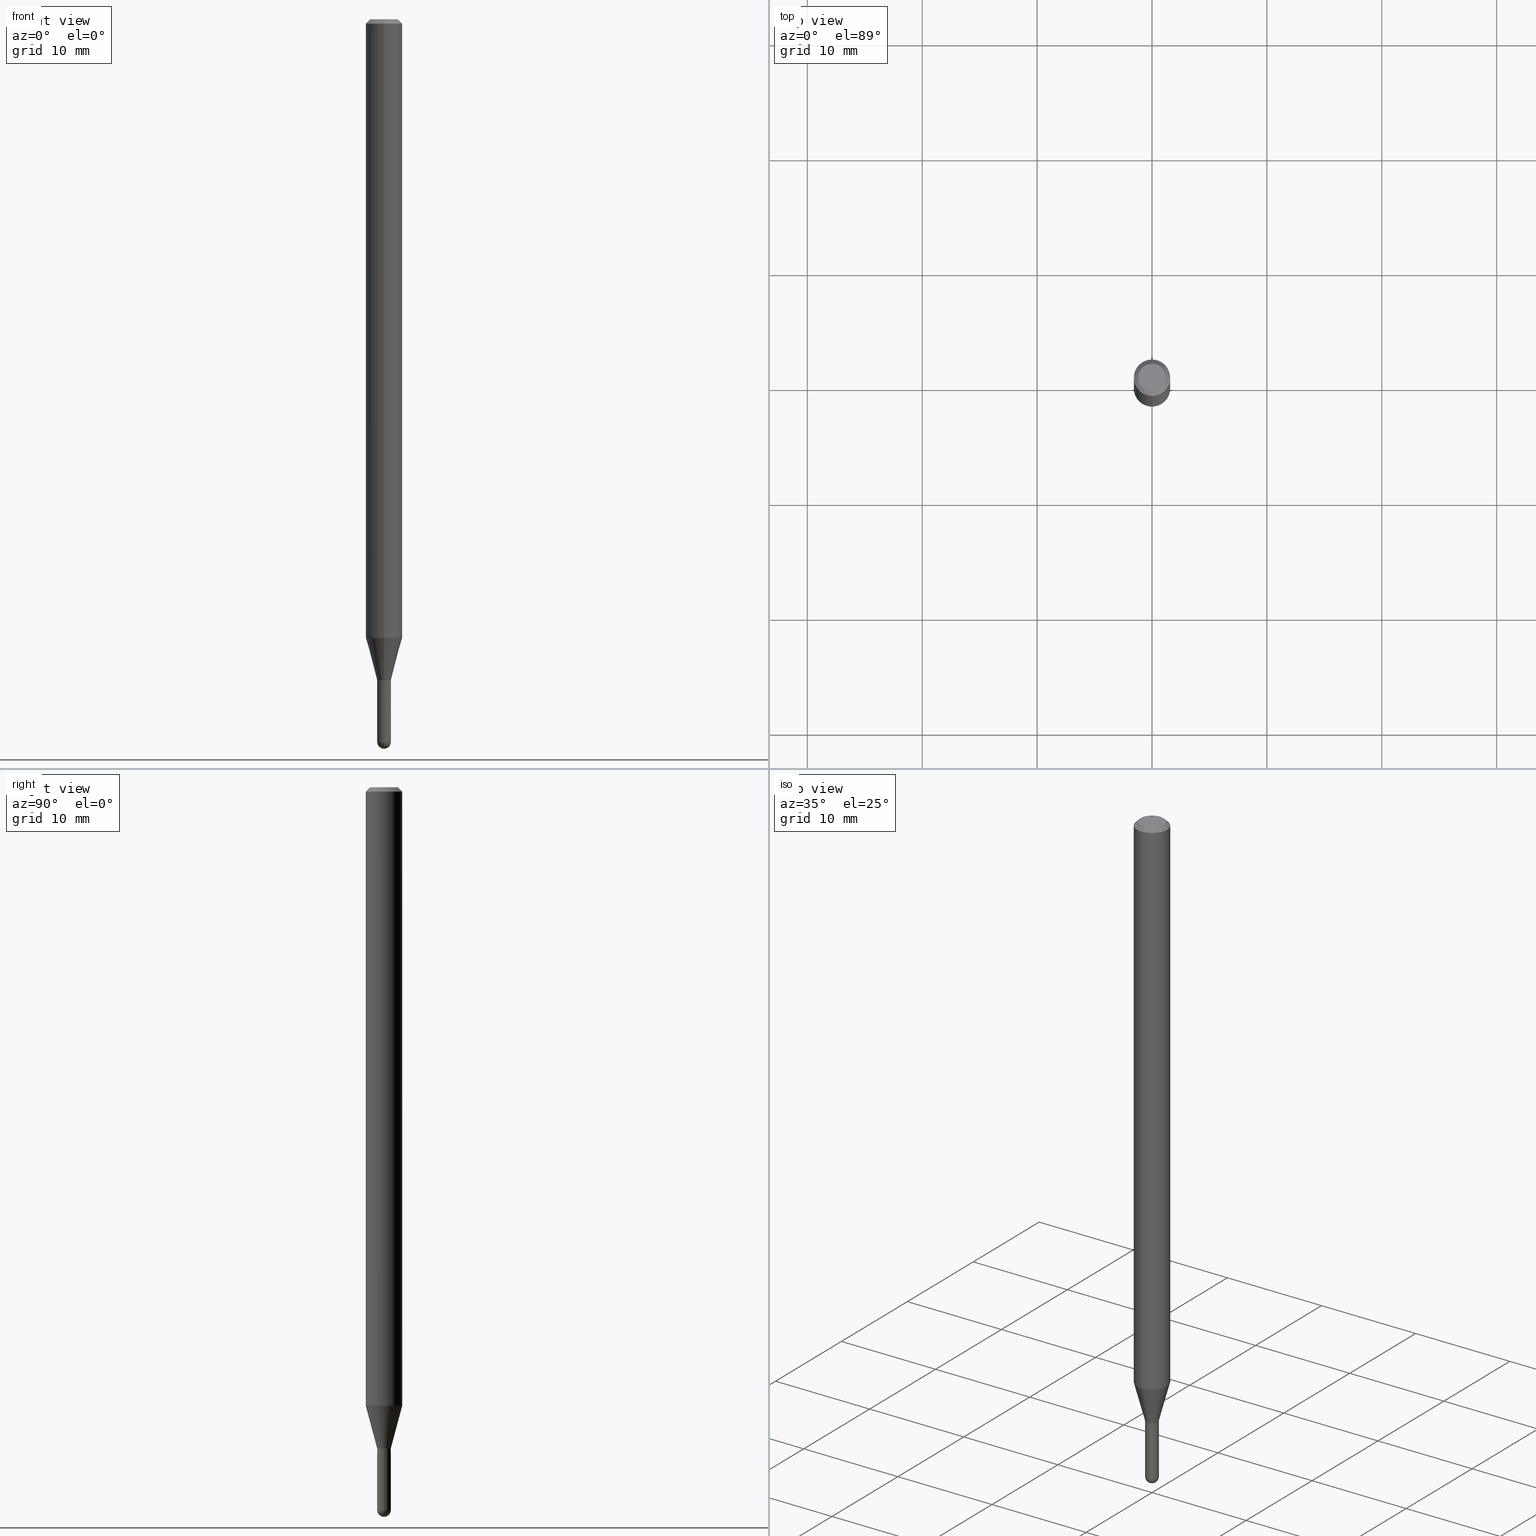
[diagram: canonical four-view strip — front | top / right | iso, engineering-drawing reading convention]
A machine part, canonical four-view strip (front | top / right | iso — engineering-drawing reading convention). The complete STEP part file that produces these views, byte-faithful:
ISO-10303-21;
HEADER;
FILE_DESCRIPTION (( 'STEP AP203' ),
    '1' );
FILE_NAME ('01508.STEP',
    '2024-03-07T19:35:51',
    ( '' ),
    ( '' ),
    'SwSTEP 2.0',
    'SolidWorks 2023',
    '' );
FILE_SCHEMA (( 'CONFIG_CONTROL_DESIGN' ));
ENDSEC;

DATA;
#1 = ORIENTED_EDGE ( 'NONE', *, *, #442, .T. ) ;
#2 = DIRECTION ( 'NONE',  ( -1.000000000000000000, 6.982962677686265922E-15, -4.883557194083112901E-29 ) ) ;
#3 = AXIS2_PLACEMENT_3D ( 'NONE', #346, #78, #281 ) ;
#4 = EDGE_CURVE ( 'NONE', #31, #505, #473, .T. ) ;
#5 = CARTESIAN_POINT ( 'NONE',  ( -1.669775429035628264E-16, -0.02350000000000862857, -2.476500000000000590 ) ) ;
#6 = ADVANCED_FACE ( 'NONE', ( #197 ), #468, .T. ) ;
#7 = DIRECTION ( 'NONE',  ( -2.445458010321293800E-29, 3.491496799134631242E-15, 1.000000000000000000 ) ) ;
#8 = DIRECTION ( 'NONE',  ( -2.445458010321293800E-29, 3.491496799134631242E-15, 1.000000000000000000 ) ) ;
#9 = AXIS2_PLACEMENT_3D ( 'NONE', #275, #471, #347 ) ;
#10 = LOCAL_TIME ( 14, 35, 51.00000000000000000, #503 ) ;
#11 = LENGTH_MEASURE_WITH_UNIT ( LENGTH_MEASURE( 0.02539999999999999897 ), #300 );
#12 = EDGE_CURVE ( 'NONE', #368, #508, #239, .T. ) ;
#13 = CARTESIAN_POINT ( 'NONE',  ( 4.364351673553919652E-16, 0.06249999999999995143, -0.01500000000000022669 ) ) ;
#14 = VERTEX_POINT ( 'NONE', #426 ) ;
#15 = CARTESIAN_POINT ( 'NONE',  ( -1.640996229256267342E-16, -0.02349999999999992373, 8.205017477966357131E-17 ) ) ;
#16 = VERTEX_POINT ( 'NONE', #82 ) ;
#17 = AXIS2_PLACEMENT_3D ( 'NONE', #272, #386, #107 ) ;
#18 = APPROVAL_PERSON_ORGANIZATION ( #110, #487, #377 ) ;
#19 = APPLICATION_CONTEXT ( 'configuration controlled 3d designs of mechanical parts and assemblies' ) ;
#20 = CARTESIAN_POINT ( 'NONE',  ( 5.183026025228223920E-29, -7.400052955535410422E-15, -2.119450018504819067 ) ) ;
#21 = ORIENTED_EDGE ( 'NONE', *, *, #149, .T. ) ;
#22 = SHAPE_DEFINITION_REPRESENTATION ( #460, #168 ) ;
#23 = APPLICATION_PROTOCOL_DEFINITION ( 'international standard', 'config_control_design', 1994, #19 ) ;
#24 = ORIENTED_EDGE ( 'NONE', *, *, #378, .T. ) ;
#25 = PERSON_AND_ORGANIZATION ( #418, #126 ) ;
#26 = COORDINATED_UNIVERSAL_TIME_OFFSET ( 5, 0, .BEHIND. ) ;
#27 = ORIENTED_EDGE ( 'NONE', *, *, #286, .T. ) ;
#28 = AXIS2_PLACEMENT_3D ( 'NONE', #119, #7, #479 ) ;
#29 = VECTOR ( 'NONE', #409, 39.37007874015748143 ) ;
#30 = DIRECTION ( 'NONE',  ( -2.445458010321293800E-29, 3.491496799134631242E-15, 1.000000000000000000 ) ) ;
#31 = VERTEX_POINT ( 'NONE', #422 ) ;
#32 = PRODUCT ( '01508', '01508', '', ( #181 ) ) ;
#33 = PERSON_AND_ORGANIZATION_ROLE ( 'design_supplier' ) ;
#34 = PLANE ( 'NONE',  #217 ) ;
#35 = PERSON_AND_ORGANIZATION_ROLE ( 'classification_officer' ) ;
#36 = DIRECTION ( 'NONE',  ( -6.982962677686265922E-15, -1.000000000000000000, 3.483106191921935554E-15 ) ) ;
#37 = EDGE_LOOP ( 'NONE', ( #307, #143, #131, #66 ) ) ;
#38 = ADVANCED_FACE ( 'NONE', ( #114 ), #271, .T. ) ;
#39 = AXIS2_PLACEMENT_3D ( 'NONE', #511, #269, #395 ) ;
#40 = AXIS2_PLACEMENT_3D ( 'NONE', #451, #96, #257 ) ;
#41 = FACE_OUTER_BOUND ( 'NONE', #419, .T. ) ;
#42 = ORIENTED_EDGE ( 'NONE', *, *, #266, .F. ) ;
#43 = CARTESIAN_POINT ( 'NONE',  ( 5.538962393377731080E-29, -7.908240250039940864E-15, -2.265000000000000124 ) ) ;
#44 = CARTESIAN_POINT ( 'NONE',  ( 1.669775429036758554E-16, 0.02349999999999166644, -2.264499999999999957 ) ) ;
#45 = EDGE_LOOP ( 'NONE', ( #499, #406, #370, #296 ) ) ;
#46 = FACE_OUTER_BOUND ( 'NONE', #450, .T. ) ;
#47 = DIRECTION ( 'NONE',  ( -6.982962677686265922E-15, -1.000000000000000000, 3.491496799134631242E-15 ) ) ;
#48 = VECTOR ( 'NONE', #457, 39.37007874015748143 ) ;
#49 = DIRECTION ( 'NONE',  ( -7.105427357601001070E-15, -1.000000000000000000, 0.000000000000000000 ) ) ;
#50 = DIRECTION ( 'NONE',  ( 1.000000000000000000, -6.982962677686269866E-15, 0.000000000000000000 ) ) ;
#51 = EDGE_CURVE ( 'NONE', #61, #368, #134, .T. ) ;
#52 = DIRECTION ( 'NONE',  ( -2.445468806185136597E-29, 3.491481338843145583E-15, 1.000000000000000000 ) ) ;
#53 = CIRCLE ( 'NONE', #364, 0.02350000000000000352 ) ;
#54 = CARTESIAN_POINT ( 'NONE',  ( 2.166574366390144991E-46, -3.093321346517198694E-32, -8.859585227985542317E-18 ) ) ;
#55 = ORIENTED_EDGE ( 'NONE', *, *, #104, .T. ) ;
#56 = ADVANCED_FACE ( 'NONE', ( #116 ), #190, .T. ) ;
#57 = DIRECTION ( 'NONE',  ( -2.445458010321293800E-29, 3.491496799134631242E-15, 1.000000000000000000 ) ) ;
#58 = ORIENTED_EDGE ( 'NONE', *, *, #423, .T. ) ;
#59 = ADVANCED_FACE ( 'NONE', ( #384 ), #278, .T. ) ;
#60 = PERSON_AND_ORGANIZATION ( #418, #126 ) ;
#61 = VERTEX_POINT ( 'NONE', #396 ) ;
#62 = AXIS2_PLACEMENT_3D ( 'NONE', #441, #8, #366 ) ;
#63 = PRODUCT_DEFINITION_FORMATION_WITH_SPECIFIED_SOURCE ( 'ANY', '', #32, .NOT_KNOWN. ) ;
#64 =( NAMED_UNIT ( * ) SI_UNIT ( $, .STERADIAN. ) SOLID_ANGLE_UNIT ( ) );
#65 = ORIENTED_EDGE ( 'NONE', *, *, #4, .F. ) ;
#66 = ORIENTED_EDGE ( 'NONE', *, *, #138, .T. ) ;
#67 = APPROVAL_DATE_TIME ( #374, #407 ) ;
#68 = DIRECTION ( 'NONE',  ( -2.445458010321293800E-29, 3.491496799134631242E-15, 1.000000000000000000 ) ) ;
#69 = CARTESIAN_POINT ( 'NONE',  ( 5.538962393377731080E-29, -7.908240250039940864E-15, -2.265000000000000124 ) ) ;
#70 = AXIS2_PLACEMENT_3D ( 'NONE', #383, #231, #199 ) ;
#71 = PERSON_AND_ORGANIZATION ( #418, #126 ) ;
#72 = CARTESIAN_POINT ( 'NONE',  ( 2.166574366390144991E-46, -3.093321346517198694E-32, -8.859585227985542317E-18 ) ) ;
#73 = VERTEX_POINT ( 'NONE', #44 ) ;
#74 = DIRECTION ( 'NONE',  ( 1.839019923739650408E-15, 0.2588190451025319527, 0.9659258262890650926 ) ) ;
#75 = ORIENTED_EDGE ( 'NONE', *, *, #317, .T. ) ;
#76 = EDGE_CURVE ( 'NONE', #14, #467, #200, .T. ) ;
#77 = LINE ( 'NONE', #309, #237 ) ;
#78 = DIRECTION ( 'NONE',  ( -2.445468806185136597E-29, 3.491481338843145583E-15, 1.000000000000000000 ) ) ;
#79 = AXIS2_PLACEMENT_3D ( 'NONE', #326, #288, #47 ) ;
#80 = CIRCLE ( 'NONE', #506, 0.02350000000000019781 ) ;
#81 = DIRECTION ( 'NONE',  ( -6.982962677686266711E-15, -1.000000000000000000, 3.491496799134631242E-15 ) ) ;
#82 = CARTESIAN_POINT ( 'NONE',  ( -3.773273898774340269E-16, -0.04749999999999999362, 1.569865127309094228E-16 ) ) ;
#83 = ORIENTED_EDGE ( 'NONE', *, *, #379, .F. ) ;
#84 = ADVANCED_FACE ( 'NONE', ( #187 ), #481, .T. ) ;
#85 = CARTESIAN_POINT ( 'NONE',  ( 5.183026025228223920E-29, -7.400052955535410422E-15, -2.119450018504819067 ) ) ;
#86 = CC_DESIGN_DATE_AND_TIME_ASSIGNMENT ( #413, #303, ( #465 ) ) ;
#87 = CARTESIAN_POINT ( 'NONE',  ( 5.538986846009334661E-29, -7.908205232479725133E-15, -2.265000000000000124 ) ) ;
#88 = FACE_OUTER_BOUND ( 'NONE', #495, .T. ) ;
#89 = AXIS2_PLACEMENT_3D ( 'NONE', #439, #428, #315 ) ;
#90 = LINE ( 'NONE', #363, #434 ) ;
#91 = LINE ( 'NONE', #244, #475 ) ;
#92 = VECTOR ( 'NONE', #277, 39.37007874015748143 ) ;
#93 = ORIENTED_EDGE ( 'NONE', *, *, #132, .F. ) ;
#94 = CC_DESIGN_APPROVAL ( #127, ( #240 ) ) ;
#95 = UNCERTAINTY_MEASURE_WITH_UNIT (LENGTH_MEASURE( 1.000000000000000082E-05 ), #253, 'distance_accuracy_value', 'NONE');
#96 = DIRECTION ( 'NONE',  ( -2.445458010321293800E-29, 3.491496799134631242E-15, 1.000000000000000000 ) ) ;
#97 = VERTEX_POINT ( 'NONE', #120 ) ;
#98 = ADVANCED_FACE ( 'NONE', ( #355 ), #512, .F. ) ;
#99 = ORIENTED_EDGE ( 'NONE', *, *, #76, .T. ) ;
#100 = ORIENTED_EDGE ( 'NONE', *, *, #121, .T. ) ;
#101 = CONICAL_SURFACE ( 'NONE', #246, 0.06250000000000000000, 0.7853981633974483900 ) ;
#102 = APPROVAL_PERSON_ORGANIZATION ( #60, #127, #295 ) ;
#103 = EDGE_LOOP ( 'NONE', ( #177, #135, #496, #83 ) ) ;
#104 = EDGE_CURVE ( 'NONE', #298, #492, #414, .T. ) ;
#105 = CARTESIAN_POINT ( 'NONE',  ( 5.538962393377729959E-29, -7.908240250039939287E-15, -2.265000000000000124 ) ) ;
#106 = DIRECTION ( 'NONE',  ( -4.937700262161976356E-15, -0.7071067811861768693, 0.7071067811869181652 ) ) ;
#107 = DIRECTION ( 'NONE',  ( 1.000000000000000000, -6.982962677686227268E-15, 0.000000000000000000 ) ) ;
#108 = ORIENTED_EDGE ( 'NONE', *, *, #331, .T. ) ;
#109 = AXIS2_PLACEMENT_3D ( 'NONE', #148, #189, #349 ) ;
#110 = PERSON_AND_ORGANIZATION ( #418, #126 ) ;
#111 = CARTESIAN_POINT ( 'NONE',  ( 1.669775429036802928E-16, 0.02349999999999228747, -2.265000000000000124 ) ) ;
#112 = ORIENTED_EDGE ( 'NONE', *, *, #132, .T. ) ;
#113 = DIRECTION ( 'NONE',  ( -2.445458010321293800E-29, 3.491496799134631242E-15, 1.000000000000000000 ) ) ;
#114 = FACE_OUTER_BOUND ( 'NONE', #103, .T. ) ;
#115 = FACE_OUTER_BOUND ( 'NONE', #260, .T. ) ;
#116 = FACE_OUTER_BOUND ( 'NONE', #301, .T. ) ;
#117 = AXIS2_PLACEMENT_3D ( 'NONE', #85, #242, #400 ) ;
#118 = AXIS2_PLACEMENT_3D ( 'NONE', #322, #478, #491 ) ;
#119 = CARTESIAN_POINT ( 'NONE',  ( 0.000000000000000000, 0.000000000000000000, 0.000000000000000000 ) ) ;
#120 = CARTESIAN_POINT ( 'NONE',  ( 3.055333763768974376E-16, 0.02349999999999228401, -2.265000000000000124 ) ) ;
#121 = EDGE_CURVE ( 'NONE', #218, #222, #424, .T. ) ;
#122 = DIRECTION ( 'NONE',  ( -6.982962677686265133E-15, -1.000000000000000000, 0.000000000000000000 ) ) ;
#123 = DIRECTION ( 'NONE',  ( -2.445458010321293800E-29, 3.491496799134631242E-15, 1.000000000000000000 ) ) ;
#124 = EDGE_CURVE ( 'NONE', #16, #174, #352, .T. ) ;
#125 = AXIS2_PLACEMENT_3D ( 'NONE', #153, #314, #470 ) ;
#126 = ORGANIZATION ( 'UNSPECIFIED', 'UNSPECIFIED', '' ) ;
#127 = APPROVAL ( #216, 'UNSPECIFIED' ) ;
#128 = FACE_OUTER_BOUND ( 'NONE', #397, .T. ) ;
#129 = CARTESIAN_POINT ( 'NONE',  ( 4.440892098501147796E-16, 0.06249999999999995837, -0.01500000000000022669 ) ) ;
#130 = EDGE_CURVE ( 'NONE', #330, #194, #501, .T. ) ;
#131 = ORIENTED_EDGE ( 'NONE', *, *, #485, .T. ) ;
#132 = EDGE_CURVE ( 'NONE', #222, #454, #489, .T. ) ;
#133 = PERSON_AND_ORGANIZATION ( #418, #126 ) ;
#134 = CIRCLE ( 'NONE', #294, 0.02299999999999999961 ) ;
#135 = ORIENTED_EDGE ( 'NONE', *, *, #292, .T. ) ;
#136 = CC_DESIGN_PERSON_AND_ORGANIZATION_ASSIGNMENT ( #71, #33, ( #63 ) ) ;
#137 = AXIS2_PLACEMENT_3D ( 'NONE', #444, #2, #165 ) ;
#138 = EDGE_CURVE ( 'NONE', #508, #73, #262, .T. ) ;
#139 = ORIENTED_EDGE ( 'NONE', *, *, #410, .T. ) ;
#140 = PERSON_AND_ORGANIZATION_ROLE ( 'creator' ) ;
#141 =( NAMED_UNIT ( * ) PLANE_ANGLE_UNIT ( ) SI_UNIT ( $, .RADIAN. ) );
#142 = ORIENTED_EDGE ( 'NONE', *, *, #379, .T. ) ;
#143 = ORIENTED_EDGE ( 'NONE', *, *, #286, .F. ) ;
#144 = AXIS2_PLACEMENT_3D ( 'NONE', #354, #469, #36 ) ;
#145 = COORDINATED_UNIVERSAL_TIME_OFFSET ( 5, 0, .BEHIND. ) ;
#146 = DIRECTION ( 'NONE',  ( 1.000000000000000000, -6.982962677686269866E-15, 0.000000000000000000 ) ) ;
#147 = PERSON_AND_ORGANIZATION ( #418, #126 ) ;
#148 = CARTESIAN_POINT ( 'NONE',  ( 5.537739664372570003E-29, -7.906494501640371165E-15, -2.264499999999999957 ) ) ;
#149 = EDGE_CURVE ( 'NONE', #73, #508, #274, .T. ) ;
#150 = DIRECTION ( 'NONE',  ( -2.445458010321293800E-29, 3.491496799134631242E-15, 1.000000000000000000 ) ) ;
#151 = DATE_AND_TIME ( #268, #10 ) ;
#152 = CARTESIAN_POINT ( 'NONE',  ( -4.364351673553912750E-16, -0.06250000000000005551, -0.01499999999999979128 ) ) ;
#153 = CARTESIAN_POINT ( 'NONE',  ( 6.054193857737919554E-29, -8.649531455623046771E-15, -2.476500000000000146 ) ) ;
#154 = AXIS2_PLACEMENT_3D ( 'NONE', #72, #113, #81 ) ;
#155 = CONICAL_SURFACE ( 'NONE', #118, 0.02350000000000019781, 0.2617993877991575680 ) ;
#156 = DIRECTION ( 'NONE',  ( 6.982962677686265922E-15, 1.000000000000000000, -3.483106191921935554E-15 ) ) ;
#157 = ORIENTED_EDGE ( 'NONE', *, *, #124, .F. ) ;
#158 = AXIS2_PLACEMENT_3D ( 'NONE', #350, #305, #432 ) ;
#159 = DIRECTION ( 'NONE',  ( 6.982962677686265922E-15, 1.000000000000000000, 0.000000000000000000 ) ) ;
#160 = CARTESIAN_POINT ( 'NONE',  ( 5.538986846009334661E-29, -7.908205232479725133E-15, -2.265000000000000124 ) ) ;
#161 = DIRECTION ( 'NONE',  ( -6.982962677686266711E-15, -1.000000000000000000, 3.491496799134631242E-15 ) ) ;
#162 = CARTESIAN_POINT ( 'NONE',  ( 3.668187015481942626E-31, -5.237245198701949674E-17, -0.01500000000000000812 ) ) ;
#163 = EDGE_CURVE ( 'NONE', #194, #174, #313, .T. ) ;
#164 = ORIENTED_EDGE ( 'NONE', *, *, #51, .T. ) ;
#165 = DIRECTION ( 'NONE',  ( 6.982962677686265922E-15, 1.000000000000000000, 0.000000000000000000 ) ) ;
#166 = CC_DESIGN_DATE_AND_TIME_ASSIGNMENT ( #151, #463, ( #240 ) ) ;
#167 = CARTESIAN_POINT ( 'NONE',  ( -1.640996229255732643E-16, -0.02350000000000810815, -2.265000000000000124 ) ) ;
#168 = ADVANCED_BREP_SHAPE_REPRESENTATION ( '01508', ( #336, #169, #382 ), #351 ) ;
#169 = MANIFOLD_SOLID_BREP ( 'Body-Move/Copy2[2]', #399 ) ;
#170 = DIRECTION ( 'NONE',  ( -2.445468806185136597E-29, 3.491481338843145583E-15, 1.000000000000000000 ) ) ;
#171 = CARTESIAN_POINT ( 'NONE',  ( 6.054193857737919554E-29, -8.649531455623046771E-15, -2.476500000000000146 ) ) ;
#172 = CIRCLE ( 'NONE', #381, 0.02350000000000019781 ) ;
#173 = PERSON_AND_ORGANIZATION_ROLE ( 'design_owner' ) ;
#174 = VERTEX_POINT ( 'NONE', #152 ) ;
#175 = EDGE_CURVE ( 'NONE', #454, #505, #77, .T. ) ;
#176 = CIRCLE ( 'NONE', #144, 0.06250000000000000000 ) ;
#177 = ORIENTED_EDGE ( 'NONE', *, *, #226, .F. ) ;
#178 = AXIS2_PLACEMENT_3D ( 'NONE', #20, #449, #329 ) ;
#179 = CYLINDRICAL_SURFACE ( 'NONE', #40, 0.06250000000000000000 ) ;
#180 = ORIENTED_EDGE ( 'NONE', *, *, #51, .F. ) ;
#181 = MECHANICAL_CONTEXT ( 'NONE', #19, 'mechanical' ) ;
#182 = ORIENTED_EDGE ( 'NONE', *, *, #423, .F. ) ;
#183 = EDGE_LOOP ( 'NONE', ( #215, #180 ) ) ;
#184 = CIRCLE ( 'NONE', #154, 0.04749999999999999362 ) ;
#185 = COORDINATED_UNIVERSAL_TIME_OFFSET ( 5, 0, .BEHIND. ) ;
#186 = DIRECTION ( 'NONE',  ( -6.982962677686265922E-15, -1.000000000000000000, 0.000000000000000000 ) ) ;
#187 = FACE_OUTER_BOUND ( 'NONE', #255, .T. ) ;
#188 = CC_DESIGN_PERSON_AND_ORGANIZATION_ASSIGNMENT ( #427, #35, ( #465 ) ) ;
#189 = DIRECTION ( 'NONE',  ( -2.445458010321293800E-29, 3.491496799134631242E-15, 1.000000000000000000 ) ) ;
#190 = SPHERICAL_SURFACE ( 'NONE', #125, 0.02349999999999995495 ) ;
#191 = EDGE_CURVE ( 'NONE', #492, #222, #327, .T. ) ;
#192 = PERSON_AND_ORGANIZATION ( #418, #126 ) ;
#193 = CARTESIAN_POINT ( 'NONE',  ( 3.668187015481942626E-31, -5.237245198701949674E-17, -0.01500000000000000812 ) ) ;
#194 = VERTEX_POINT ( 'NONE', #345 ) ;
#195 = VECTOR ( 'NONE', #150, 39.37007874015748143 ) ;
#196 = CARTESIAN_POINT ( 'NONE',  ( 6.112667195073056873E-29, -8.730142307096863163E-15, -2.500000000000000000 ) ) ;
#197 = FACE_OUTER_BOUND ( 'NONE', #456, .T. ) ;
#198 = ADVANCED_FACE ( 'NONE', ( #115 ), #34, .F. ) ;
#199 = DIRECTION ( 'NONE',  ( 1.000000000000000000, -6.982962677686227268E-15, 0.000000000000000000 ) ) ;
#200 = LINE ( 'NONE', #502, #195 ) ;
#201 = ORIENTED_EDGE ( 'NONE', *, *, #362, .T. ) ;
#202 = DIRECTION ( 'NONE',  ( 1.000000000000000000, -6.982962677686227268E-15, 0.000000000000000000 ) ) ;
#203 = VECTOR ( 'NONE', #233, 39.37007874015748143 ) ;
#204 = LOCAL_TIME ( 14, 35, 51.00000000000000000, #26 ) ;
#205 = DIRECTION ( 'NONE',  ( -1.000000000000000000, 7.105427357601001070E-15, -4.926315508542082329E-29 ) ) ;
#206 = CARTESIAN_POINT ( 'NONE',  ( 0.000000000000000000, 0.000000000000000000, 0.000000000000000000 ) ) ;
#207 = DIRECTION ( 'NONE',  ( -2.445458010321293800E-29, 3.491496799134631242E-15, 1.000000000000000000 ) ) ;
#208 = CIRCLE ( 'NONE', #497, 0.02349999999999995495 ) ;
#209 = PLANE ( 'NONE',  #79 ) ;
#210 = DIMENSIONAL_EXPONENTS ( 1.000000000000000000, 0.000000000000000000, 0.000000000000000000, 0.000000000000000000, 0.000000000000000000, 0.000000000000000000, 0.000000000000000000 ) ;
#211 = CARTESIAN_POINT ( 'NONE',  ( 0.000000000000000000, 0.000000000000000000, 0.000000000000000000 ) ) ;
#212 = EDGE_LOOP ( 'NONE', ( #446, #142, #267, #380 ) ) ;
#213 = CC_DESIGN_PERSON_AND_ORGANIZATION_ASSIGNMENT ( #147, #389, ( #63 ) ) ;
#214 = CARTESIAN_POINT ( 'NONE',  ( 3.840629472727447874E-16, 0.04749999999999999362, -1.747056831868805136E-16 ) ) ;
#215 = ORIENTED_EDGE ( 'NONE', *, *, #410, .F. ) ;
#216 = APPROVAL_STATUS ( 'not_yet_approved' ) ;
#217 = AXIS2_PLACEMENT_3D ( 'NONE', #425, #466, #392 ) ;
#218 = VERTEX_POINT ( 'NONE', #196 ) ;
#219 = CIRCLE ( 'NONE', #436, 0.04749999999999999362 ) ;
#220 = CALENDAR_DATE ( 2024, 7, 3 ) ;
#221 = CARTESIAN_POINT ( 'NONE',  ( 0.02350000000000000699, -8.441529006988016167E-15, -2.476500000000000590 ) ) ;
#222 = VERTEX_POINT ( 'NONE', #280 ) ;
#223 = CC_DESIGN_PERSON_AND_ORGANIZATION_ASSIGNMENT ( #133, #173, ( #32 ) ) ;
#224 = CARTESIAN_POINT ( 'NONE',  ( -0.02350000000000000699, -8.110451841158766012E-15, -2.476500000000000590 ) ) ;
#225 = ORIENTED_EDGE ( 'NONE', *, *, #266, .T. ) ;
#226 = EDGE_CURVE ( 'NONE', #97, #14, #390, .T. ) ;
#227 = CARTESIAN_POINT ( 'NONE',  ( 5.538962393377729959E-29, -7.908240250039939287E-15, -2.265000000000000124 ) ) ;
#228 = DIRECTION ( 'NONE',  ( -6.982962677686265133E-15, -1.000000000000000000, 0.000000000000000000 ) ) ;
#229 = CIRCLE ( 'NONE', #254, 0.02350000000000000699 ) ;
#230 = APPROVAL_DATE_TIME ( #493, #487 ) ;
#231 = DIRECTION ( 'NONE',  ( -2.445468806185136597E-29, 3.491481338843145583E-15, 1.000000000000000000 ) ) ;
#232 = ORIENTED_EDGE ( 'NONE', *, *, #331, .F. ) ;
#233 = DIRECTION ( 'NONE',  ( -4.851104656540964275E-15, -0.7071067811865500152, -0.7071067811865450192 ) ) ;
#234 = CARTESIAN_POINT ( 'NONE',  ( -1.606081415867287287E-16, -0.02300000000000790995, -2.265000000000000124 ) ) ;
#235 = DIRECTION ( 'NONE',  ( -2.445468806185136877E-29, 3.491481338843145188E-15, 1.000000000000000000 ) ) ;
#236 = ORIENTED_EDGE ( 'NONE', *, *, #191, .F. ) ;
#237 = VECTOR ( 'NONE', #235, 39.37007874015748143 ) ;
#238 = DIRECTION ( 'NONE',  ( 1.000000000000000000, -6.982962677686265922E-15, 4.883557194083112340E-29 ) ) ;
#239 = LINE ( 'NONE', #234, #344 ) ;
#240 = PRODUCT_DEFINITION ( 'UNKNOWN', '', #63, #408 ) ;
#241 = ORIENTED_EDGE ( 'NONE', *, *, #245, .F. ) ;
#242 = DIRECTION ( 'NONE',  ( -2.445458010321293800E-29, 3.491496799134631242E-15, 1.000000000000000000 ) ) ;
#243 = APPLICATION_CONTEXT ( 'configuration controlled 3d designs of mechanical parts and assemblies' ) ;
#244 = CARTESIAN_POINT ( 'NONE',  ( 1.669775429036229771E-16, 0.02349999999999992373, -8.205017477966357131E-17 ) ) ;
#245 = EDGE_CURVE ( 'NONE', #174, #467, #176, .T. ) ;
#246 = AXIS2_PLACEMENT_3D ( 'NONE', #193, #507, #156 ) ;
#247 = CC_DESIGN_APPROVAL ( #407, ( #465 ) ) ;
#248 = CARTESIAN_POINT ( 'NONE',  ( 0.000000000000000000, 0.000000000000000000, 0.000000000000000000 ) ) ;
#249 = FACE_OUTER_BOUND ( 'NONE', #37, .T. ) ;
#250 = CYLINDRICAL_SURFACE ( 'NONE', #447, 0.02349999999999992373 ) ;
#251 = ADVANCED_FACE ( 'NONE', ( #431 ), #101, .T. ) ;
#252 = CIRCLE ( 'NONE', #320, 0.02299999999999999961 ) ;
#253 =( CONVERSION_BASED_UNIT ( 'INCH', #11 ) LENGTH_UNIT ( ) NAMED_UNIT ( #210 ) );
#254 = AXIS2_PLACEMENT_3D ( 'NONE', #287, #170, #202 ) ;
#255 = EDGE_LOOP ( 'NONE', ( #157, #42, #343, #75 ) ) ;
#256 = CC_DESIGN_PERSON_AND_ORGANIZATION_ASSIGNMENT ( #25, #140, ( #240 ) ) ;
#257 = DIRECTION ( 'NONE',  ( -6.982962677686265922E-15, -1.000000000000000000, 3.491496799134631242E-15 ) ) ;
#258 = ORIENTED_EDGE ( 'NONE', *, *, #138, .F. ) ;
#259 = LINE ( 'NONE', #15, #29 ) ;
#260 = EDGE_LOOP ( 'NONE', ( #225, #430 ) ) ;
#261 = SECURITY_CLASSIFICATION_LEVEL ( 'unclassified' ) ;
#262 = CIRCLE ( 'NONE', #39, 0.02349999999999965311 ) ;
#263 = ORIENTED_EDGE ( 'NONE', *, *, #485, .F. ) ;
#264 = CC_DESIGN_APPROVAL ( #487, ( #63 ) ) ;
#265 = CARTESIAN_POINT ( 'NONE',  ( -1.640996229255700102E-16, -0.02350000000000763978, -2.264499999999999957 ) ) ;
#266 = EDGE_CURVE ( 'NONE', #488, #16, #184, .T. ) ;
#267 = ORIENTED_EDGE ( 'NONE', *, *, #163, .T. ) ;
#268 = CALENDAR_DATE ( 2024, 7, 3 ) ;
#269 = DIRECTION ( 'NONE',  ( -2.445458010321293800E-29, 3.491496799134631242E-15, 1.000000000000000000 ) ) ;
#270 = ORIENTED_EDGE ( 'NONE', *, *, #362, .F. ) ;
#271 = CONICAL_SURFACE ( 'NONE', #359, 0.02350000000000019781, 0.2617993877991575680 ) ;
#272 = CARTESIAN_POINT ( 'NONE',  ( 6.056203498517492154E-29, -8.646653535645053486E-15, -2.476500000000000590 ) ) ;
#273 = DIRECTION ( 'NONE',  ( -2.445468806185136597E-29, 3.491481338843145583E-15, 1.000000000000000000 ) ) ;
#274 = CIRCLE ( 'NONE', #109, 0.02349999999999965311 ) ;
#275 = CARTESIAN_POINT ( 'NONE',  ( 6.056203498517492154E-29, -8.646653535645053486E-15, -2.476500000000000590 ) ) ;
#276 = DIRECTION ( 'NONE',  ( -6.982962677686265922E-15, -1.000000000000000000, 0.000000000000000000 ) ) ;
#277 = DIRECTION ( 'NONE',  ( -1.807323732225379443E-15, -0.2588190451025252359, 0.9659258262890670910 ) ) ;
#278 = CYLINDRICAL_SURFACE ( 'NONE', #3, 0.02350000000000000352 ) ;
#279 = ADVANCED_FACE ( 'NONE', ( #41 ), #311, .T. ) ;
#280 = CARTESIAN_POINT ( 'NONE',  ( 1.640996229256876491E-16, 0.02349999999999133338, -2.476500000000000590 ) ) ;
#281 = DIRECTION ( 'NONE',  ( 1.000000000000000000, -6.982962677686265922E-15, 4.876176775795935793E-29 ) ) ;
#282 = VECTOR ( 'NONE', #325, 39.37007874015748143 ) ;
#283 = LOCAL_TIME ( 14, 35, 51.00000000000000000, #494 ) ;
#284 = CARTESIAN_POINT ( 'NONE',  ( 0.000000000000000000, 0.000000000000000000, 0.000000000000000000 ) ) ;
#285 = ORIENTED_EDGE ( 'NONE', *, *, #104, .F. ) ;
#286 = EDGE_CURVE ( 'NONE', #330, #97, #172, .T. ) ;
#287 = CARTESIAN_POINT ( 'NONE',  ( 6.056203498517492154E-29, -8.646653535645053486E-15, -2.476500000000000590 ) ) ;
#288 = DIRECTION ( 'NONE',  ( -2.445458010321293239E-29, 3.491496799134631242E-15, 1.000000000000000000 ) ) ;
#289 = CIRCLE ( 'NONE', #62, 0.06250000000000000000 ) ;
#290 = FACE_OUTER_BOUND ( 'NONE', #462, .T. ) ;
#291 = CYLINDRICAL_SURFACE ( 'NONE', #28, 0.06250000000000000000 ) ;
#292 = EDGE_CURVE ( 'NONE', #97, #330, #80, .T. ) ;
#293 = ORIENTED_EDGE ( 'NONE', *, *, #149, .F. ) ;
#294 = AXIS2_PLACEMENT_3D ( 'NONE', #69, #472, #228 ) ;
#295 = APPROVAL_ROLE ( '' ) ;
#296 = ORIENTED_EDGE ( 'NONE', *, *, #500, .F. ) ;
#297 = DIRECTION ( 'NONE',  ( -6.982962677686266711E-15, -1.000000000000000000, 3.491496799134631242E-15 ) ) ;
#298 = VERTEX_POINT ( 'NONE', #5 ) ;
#299 = APPROVAL_STATUS ( 'not_yet_approved' ) ;
#300 =( LENGTH_UNIT ( ) NAMED_UNIT ( * ) SI_UNIT ( $, .METRE. ) );
#301 = EDGE_LOOP ( 'NONE', ( #270, #100, #236, #285 ) ) ;
#302 = ORIENTED_EDGE ( 'NONE', *, *, #130, .F. ) ;
#303 = DATE_TIME_ROLE ( 'classification_date' ) ;
#304 = CARTESIAN_POINT ( 'NONE',  ( -4.287811248607203282E-16, -0.06250000000000005551, -0.01499999999999979128 ) ) ;
#305 = DIRECTION ( 'NONE',  ( -2.445458010321293800E-29, 3.491496799134631242E-15, 1.000000000000000000 ) ) ;
#306 = DIRECTION ( 'NONE',  ( -6.982962677686265133E-15, -1.000000000000000000, 0.000000000000000000 ) ) ;
#307 = ORIENTED_EDGE ( 'NONE', *, *, #342, .F. ) ;
#308 = CLOSED_SHELL ( 'NONE', ( #59, #437, #98, #56, #429 ) ) ;
#309 = CARTESIAN_POINT ( 'NONE',  ( -0.02350000000000000352, 1.669775429036235687E-16, -1.155949746209903035E-30 ) ) ;
#310 = ORIENTED_EDGE ( 'NONE', *, *, #175, .F. ) ;
#311 = CONICAL_SURFACE ( 'NONE', #371, 0.02299999999999999961, 0.7853981633969275844 ) ;
#312 = VECTOR ( 'NONE', #415, 39.37007874015748143 ) ;
#313 = LINE ( 'NONE', #509, #48 ) ;
#314 = DIRECTION ( 'NONE',  ( -1.000000000000000000, 6.982962677686265922E-15, -4.883557194083112901E-29 ) ) ;
#315 = DIRECTION ( 'NONE',  ( -1.000000000000000000, 6.982962677686265922E-15, -4.876176775795935793E-29 ) ) ;
#316 = DIRECTION ( 'NONE',  ( -2.445458010321293800E-29, 3.491496799134631242E-15, 1.000000000000000000 ) ) ;
#317 = EDGE_CURVE ( 'NONE', #467, #174, #289, .T. ) ;
#318 = CARTESIAN_POINT ( 'NONE',  ( 5.538962393377731080E-29, -7.908240250039940864E-15, -2.265000000000000124 ) ) ;
#319 = DIRECTION ( 'NONE',  ( 6.982962677686265922E-15, 1.000000000000000000, -3.483106191921935554E-15 ) ) ;
#320 = AXIS2_PLACEMENT_3D ( 'NONE', #318, #123, #122 ) ;
#321 = ADVANCED_FACE ( 'NONE', ( #249 ), #357, .F. ) ;
#322 = CARTESIAN_POINT ( 'NONE',  ( 5.538962393377729959E-29, -7.908240250039939287E-15, -2.265000000000000124 ) ) ;
#323 = PRODUCT_RELATED_PRODUCT_CATEGORY ( 'detail', '', ( #32 ) ) ;
#324 = ADVANCED_FACE ( 'NONE', ( #404 ), #209, .F. ) ;
#325 = DIRECTION ( 'NONE',  ( 5.024295867785445738E-15, 0.7071067811861817543, 0.7071067811869132802 ) ) ;
#326 = CARTESIAN_POINT ( 'NONE',  ( 5.538962393377729959E-29, -7.908240250039939287E-15, -2.265000000000000124 ) ) ;
#327 = CIRCLE ( 'NONE', #9, 0.02350000000000000699 ) ;
#328 = CARTESIAN_POINT ( 'NONE',  ( -1.606081415867287287E-16, -0.02300000000000790995, -2.265000000000000124 ) ) ;
#329 = DIRECTION ( 'NONE',  ( -6.982962677686265922E-15, -1.000000000000000000, 4.370956789862821150E-15 ) ) ;
#330 = VERTEX_POINT ( 'NONE', #167 ) ;
#331 = EDGE_CURVE ( 'NONE', #505, #31, #53, .T. ) ;
#332 = CIRCLE ( 'NONE', #178, 0.06250000000000000000 ) ;
#333 = ORIENTED_EDGE ( 'NONE', *, *, #358, .F. ) ;
#334 = APPROVAL_DATE_TIME ( #369, #127 ) ;
#335 = CARTESIAN_POINT ( 'NONE',  ( -0.02350000000000000352, -8.110451841158766012E-15, -2.265000000000000124 ) ) ;
#336 = MANIFOLD_SOLID_BREP ( 'Body-Move/Copy2[1]', #308 ) ;
#337 = ORIENTED_EDGE ( 'NONE', *, *, #378, .F. ) ;
#338 = CALENDAR_DATE ( 2024, 7, 3 ) ;
#339 = DIRECTION ( 'NONE',  ( 1.000000000000000000, 0.000000000000000000, 0.000000000000000000 ) ) ;
#340 = ORIENTED_EDGE ( 'NONE', *, *, #358, .T. ) ;
#341 = CIRCLE ( 'NONE', #117, 0.06250000000000000000 ) ;
#342 = EDGE_CURVE ( 'NONE', #97, #73, #91, .T. ) ;
#343 = ORIENTED_EDGE ( 'NONE', *, *, #500, .T. ) ;
#344 = VECTOR ( 'NONE', #106, 39.37007874015748143 ) ;
#345 = CARTESIAN_POINT ( 'NONE',  ( -4.364351673553400483E-16, -0.06250000000000742462, -2.119450018504819067 ) ) ;
#346 = CARTESIAN_POINT ( 'NONE',  ( 0.000000000000000000, 0.000000000000000000, 0.000000000000000000 ) ) ;
#347 = DIRECTION ( 'NONE',  ( 1.000000000000000000, -6.982962677686227268E-15, 0.000000000000000000 ) ) ;
#348 = ORIENTED_EDGE ( 'NONE', *, *, #12, .F. ) ;
#349 = DIRECTION ( 'NONE',  ( -6.982962677686265133E-15, -1.000000000000000000, 0.000000000000000000 ) ) ;
#350 = CARTESIAN_POINT ( 'NONE',  ( 5.538962393377731080E-29, -7.908240250039940864E-15, -2.265000000000000124 ) ) ;
#351 =( GEOMETRIC_REPRESENTATION_CONTEXT ( 3 ) GLOBAL_UNCERTAINTY_ASSIGNED_CONTEXT ( ( #95 ) ) GLOBAL_UNIT_ASSIGNED_CONTEXT ( ( #253, #141, #64 ) ) REPRESENTATION_CONTEXT ( 'NONE', 'WORKASPACE' ) );
#352 = LINE ( 'NONE', #304, #203 ) ;
#353 = ORIENTED_EDGE ( 'NONE', *, *, #121, .F. ) ;
#354 = CARTESIAN_POINT ( 'NONE',  ( 3.668187015481942626E-31, -5.237245198701949674E-17, -0.01500000000000000812 ) ) ;
#355 = FACE_OUTER_BOUND ( 'NONE', #411, .T. ) ;
#356 = ORIENTED_EDGE ( 'NONE', *, *, #442, .F. ) ;
#357 = CYLINDRICAL_SURFACE ( 'NONE', #365, 0.02349999999999992373 ) ;
#358 = EDGE_CURVE ( 'NONE', #492, #31, #90, .T. ) ;
#359 = AXIS2_PLACEMENT_3D ( 'NONE', #391, #316, #276 ) ;
#360 = DIRECTION ( 'NONE',  ( -2.445458010321293800E-29, 3.491496799134631242E-15, 1.000000000000000000 ) ) ;
#361 = DIRECTION ( 'NONE',  ( 1.000000000000000000, -6.982962677686265922E-15, 4.876176775795935793E-29 ) ) ;
#362 = EDGE_CURVE ( 'NONE', #218, #298, #208, .T. ) ;
#363 = CARTESIAN_POINT ( 'NONE',  ( 0.02350000000000000352, -1.640996229256272766E-16, 1.145901542312045115E-30 ) ) ;
#364 = AXIS2_PLACEMENT_3D ( 'NONE', #87, #52, #50 ) ;
#365 = AXIS2_PLACEMENT_3D ( 'NONE', #284, #207, #445 ) ;
#366 = DIRECTION ( 'NONE',  ( -6.982962677686265922E-15, -1.000000000000000000, 3.483106191921935554E-15 ) ) ;
#367 = DIRECTION ( 'NONE',  ( 0.000000000000000000, 0.000000000000000000, 1.000000000000000000 ) ) ;
#368 = VERTEX_POINT ( 'NONE', #328 ) ;
#369 = DATE_AND_TIME ( #486, #283 ) ;
#370 = ORIENTED_EDGE ( 'NONE', *, *, #245, .T. ) ;
#371 = AXIS2_PLACEMENT_3D ( 'NONE', #43, #68, #306 ) ;
#372 = APPLICATION_PROTOCOL_DEFINITION ( 'international standard', 'config_control_design', 1994, #243 ) ;
#373 = ORIENTED_EDGE ( 'NONE', *, *, #175, .T. ) ;
#374 = DATE_AND_TIME ( #220, #482 ) ;
#375 = LINE ( 'NONE', #13, #312 ) ;
#376 = ORIENTED_EDGE ( 'NONE', *, *, #342, .T. ) ;
#377 = APPROVAL_ROLE ( '' ) ;
#378 = EDGE_CURVE ( 'NONE', #61, #73, #480, .T. ) ;
#379 = EDGE_CURVE ( 'NONE', #14, #194, #341, .T. ) ;
#380 = ORIENTED_EDGE ( 'NONE', *, *, #317, .F. ) ;
#381 = AXIS2_PLACEMENT_3D ( 'NONE', #105, #421, #461 ) ;
#382 = AXIS2_PLACEMENT_3D ( 'NONE', #211, #367, #339 ) ;
#383 = CARTESIAN_POINT ( 'NONE',  ( 6.056203498517492154E-29, -8.646653535645053486E-15, -2.476500000000000590 ) ) ;
#384 = FACE_OUTER_BOUND ( 'NONE', #387, .T. ) ;
#385 = ADVANCED_FACE ( 'NONE', ( #128 ), #291, .T. ) ;
#386 = DIRECTION ( 'NONE',  ( -2.445468806185136597E-29, 3.491481338843145583E-15, 1.000000000000000000 ) ) ;
#387 = EDGE_LOOP ( 'NONE', ( #112, #373, #65, #333, #417 ) ) ;
#388 = ADVANCED_FACE ( 'NONE', ( #88 ), #250, .F. ) ;
#389 = PERSON_AND_ORGANIZATION_ROLE ( 'creator' ) ;
#390 = LINE ( 'NONE', #111, #464 ) ;
#391 = CARTESIAN_POINT ( 'NONE',  ( 5.538962393377729959E-29, -7.908240250039939287E-15, -2.265000000000000124 ) ) ;
#392 = DIRECTION ( 'NONE',  ( 6.982962677686265922E-15, 1.000000000000000000, -3.491496799134631242E-15 ) ) ;
#393 = ORIENTED_EDGE ( 'NONE', *, *, #163, .F. ) ;
#394 = AXIS2_PLACEMENT_3D ( 'NONE', #160, #273, #146 ) ;
#395 = DIRECTION ( 'NONE',  ( -6.982962677686265133E-15, -1.000000000000000000, 0.000000000000000000 ) ) ;
#396 = CARTESIAN_POINT ( 'NONE',  ( 1.652011860642771318E-16, 0.02299999999999209621, -2.265000000000000124 ) ) ;
#397 = EDGE_LOOP ( 'NONE', ( #1, #99, #241, #393 ) ) ;
#398 = SPHERICAL_SURFACE ( 'NONE', #137, 0.02349999999999995495 ) ;
#399 = CLOSED_SHELL ( 'NONE', ( #388, #6, #251, #385, #438, #38, #459, #84, #198, #324, #279, #321 ) ) ;
#400 = DIRECTION ( 'NONE',  ( -6.982962677686265922E-15, -1.000000000000000000, 4.370956789862821150E-15 ) ) ;
#401 = AXIS2_PLACEMENT_3D ( 'NONE', #433, #238, #159 ) ;
#402 = LOCAL_TIME ( 14, 35, 51.00000000000000000, #145 ) ;
#403 = CYLINDRICAL_SURFACE ( 'NONE', #477, 0.02350000000000000352 ) ;
#404 = FACE_OUTER_BOUND ( 'NONE', #183, .T. ) ;
#405 = DIRECTION ( 'NONE',  ( -2.445458010321293800E-29, 3.491496799134631242E-15, 1.000000000000000000 ) ) ;
#406 = ORIENTED_EDGE ( 'NONE', *, *, #124, .T. ) ;
#407 = APPROVAL ( #299, 'UNSPECIFIED' ) ;
#408 = DESIGN_CONTEXT ( 'detailed design', #243, 'design' ) ;
#409 = DIRECTION ( 'NONE',  ( -2.445458010321293800E-29, 3.491496799134631242E-15, 1.000000000000000000 ) ) ;
#410 = EDGE_CURVE ( 'NONE', #368, #61, #252, .T. ) ;
#411 = EDGE_LOOP ( 'NONE', ( #452, #108 ) ) ;
#412 = ORIENTED_EDGE ( 'NONE', *, *, #292, .F. ) ;
#413 = DATE_AND_TIME ( #338, #402 ) ;
#414 = CIRCLE ( 'NONE', #70, 0.02350000000000000699 ) ;
#415 = DIRECTION ( 'NONE',  ( 4.937700262164548042E-15, 0.7071067811865451302, -0.7071067811865499042 ) ) ;
#416 = CC_DESIGN_SECURITY_CLASSIFICATION ( #465, ( #63 ) ) ;
#417 = ORIENTED_EDGE ( 'NONE', *, *, #191, .T. ) ;
#418 = PERSON ( 'UNSPECIFIED', 'UNSPECIFIED', 'UNSPECIFIED', ('UNSPECIFIED'), ('UNSPECIFIED'), ('UNSPECIFIED') ) ;
#419 = EDGE_LOOP ( 'NONE', ( #337, #164, #435, #293 ) ) ;
#420 = APPROVAL_STATUS ( 'not_yet_approved' ) ;
#421 = DIRECTION ( 'NONE',  ( -2.445458010321293800E-29, 3.491496799134631242E-15, 1.000000000000000000 ) ) ;
#422 = CARTESIAN_POINT ( 'NONE',  ( 0.02350000000000000352, -8.072304855405352780E-15, -2.265000000000000124 ) ) ;
#423 = EDGE_CURVE ( 'NONE', #454, #298, #229, .T. ) ;
#424 = CIRCLE ( 'NONE', #401, 0.02349999999999995495 ) ;
#425 = CARTESIAN_POINT ( 'NONE',  ( 3.316907271900976096E-16, 0.04749999999999999362, -1.702758905728877286E-16 ) ) ;
#426 = CARTESIAN_POINT ( 'NONE',  ( 4.440892098501141880E-16, 0.06249999999999258232, -2.119450018504819511 ) ) ;
#427 = PERSON_AND_ORGANIZATION ( #418, #126 ) ;
#428 = DIRECTION ( 'NONE',  ( 2.438088387897960049E-29, -3.491481338843145188E-15, -1.000000000000000000 ) ) ;
#429 = ADVANCED_FACE ( 'NONE', ( #474 ), #403, .T. ) ;
#430 = ORIENTED_EDGE ( 'NONE', *, *, #448, .T. ) ;
#431 = FACE_OUTER_BOUND ( 'NONE', #45, .T. ) ;
#432 = DIRECTION ( 'NONE',  ( -6.982962677686265133E-15, -1.000000000000000000, 0.000000000000000000 ) ) ;
#433 = CARTESIAN_POINT ( 'NONE',  ( 6.054193857737919554E-29, -8.649531455623046771E-15, -2.476500000000000146 ) ) ;
#434 = VECTOR ( 'NONE', #443, 39.37007874015748143 ) ;
#435 = ORIENTED_EDGE ( 'NONE', *, *, #12, .T. ) ;
#436 = AXIS2_PLACEMENT_3D ( 'NONE', #54, #57, #297 ) ;
#437 = ADVANCED_FACE ( 'NONE', ( #46 ), #398, .T. ) ;
#438 = ADVANCED_FACE ( 'NONE', ( #290 ), #155, .T. ) ;
#439 = CARTESIAN_POINT ( 'NONE',  ( 1.640996229256826447E-16, 0.02349999999999209319, -2.265000000000000124 ) ) ;
#440 = DIRECTION ( 'NONE',  ( -2.445468806185136597E-29, 3.491481338843145583E-15, 1.000000000000000000 ) ) ;
#441 = CARTESIAN_POINT ( 'NONE',  ( 3.668187015481942626E-31, -5.237245198701949674E-17, -0.01500000000000000812 ) ) ;
#442 = EDGE_CURVE ( 'NONE', #194, #14, #332, .T. ) ;
#443 = DIRECTION ( 'NONE',  ( -2.445468806185136877E-29, 3.491481338843145188E-15, 1.000000000000000000 ) ) ;
#444 = CARTESIAN_POINT ( 'NONE',  ( 6.054193857737919554E-29, -8.649531455623046771E-15, -2.476500000000000146 ) ) ;
#445 = DIRECTION ( 'NONE',  ( -6.982962677686266711E-15, -1.000000000000000000, 3.491496799134631242E-15 ) ) ;
#446 = ORIENTED_EDGE ( 'NONE', *, *, #76, .F. ) ;
#447 = AXIS2_PLACEMENT_3D ( 'NONE', #248, #405, #161 ) ;
#448 = EDGE_CURVE ( 'NONE', #16, #488, #219, .T. ) ;
#449 = DIRECTION ( 'NONE',  ( -2.445458010321293800E-29, 3.491496799134631242E-15, 1.000000000000000000 ) ) ;
#450 = EDGE_LOOP ( 'NONE', ( #353, #201, #182, #93 ) ) ;
#451 = CARTESIAN_POINT ( 'NONE',  ( 0.000000000000000000, 0.000000000000000000, 0.000000000000000000 ) ) ;
#452 = ORIENTED_EDGE ( 'NONE', *, *, #4, .T. ) ;
#453 = APPROVAL_ROLE ( '' ) ;
#454 = VERTEX_POINT ( 'NONE', #224 ) ;
#455 = AXIS2_PLACEMENT_3D ( 'NONE', #162, #476, #319 ) ;
#456 = EDGE_LOOP ( 'NONE', ( #139, #24, #258, #348 ) ) ;
#457 = DIRECTION ( 'NONE',  ( -2.445458010321293800E-29, 3.491496799134631242E-15, 1.000000000000000000 ) ) ;
#458 = EDGE_LOOP ( 'NONE', ( #310, #58, #55, #340, #232 ) ) ;
#459 = ADVANCED_FACE ( 'NONE', ( #484 ), #179, .T. ) ;
#460 = PRODUCT_DEFINITION_SHAPE ( 'NONE', 'NONE',  #240 ) ;
#461 = DIRECTION ( 'NONE',  ( -6.982962677686265922E-15, -1.000000000000000000, 0.000000000000000000 ) ) ;
#462 = EDGE_LOOP ( 'NONE', ( #27, #510, #356, #302 ) ) ;
#463 = DATE_TIME_ROLE ( 'creation_date' ) ;
#464 = VECTOR ( 'NONE', #74, 39.37007874015748854 ) ;
#465 = SECURITY_CLASSIFICATION ( '', '', #261 ) ;
#466 = DIRECTION ( 'NONE',  ( 2.445458010321293239E-29, -3.491496799134631242E-15, -1.000000000000000000 ) ) ;
#467 = VERTEX_POINT ( 'NONE', #129 ) ;
#468 = CONICAL_SURFACE ( 'NONE', #158, 0.02299999999999999961, 0.7853981633969275844 ) ;
#469 = DIRECTION ( 'NONE',  ( -2.445458010321293800E-29, 3.491496799134631242E-15, 1.000000000000000000 ) ) ;
#470 = DIRECTION ( 'NONE',  ( 6.982962677686265922E-15, 1.000000000000000000, 0.000000000000000000 ) ) ;
#471 = DIRECTION ( 'NONE',  ( -2.445468806185136597E-29, 3.491481338843145583E-15, 1.000000000000000000 ) ) ;
#472 = DIRECTION ( 'NONE',  ( -2.445458010321293800E-29, 3.491496799134631242E-15, 1.000000000000000000 ) ) ;
#473 = CIRCLE ( 'NONE', #394, 0.02350000000000000352 ) ;
#474 = FACE_OUTER_BOUND ( 'NONE', #458, .T. ) ;
#475 = VECTOR ( 'NONE', #360, 39.37007874015748143 ) ;
#476 = DIRECTION ( 'NONE',  ( 2.445458010321293800E-29, -3.491496799134631242E-15, -1.000000000000000000 ) ) ;
#477 = AXIS2_PLACEMENT_3D ( 'NONE', #206, #440, #361 ) ;
#478 = DIRECTION ( 'NONE',  ( -2.445458010321293800E-29, 3.491496799134631242E-15, 1.000000000000000000 ) ) ;
#479 = DIRECTION ( 'NONE',  ( -6.982962677686265922E-15, -1.000000000000000000, 3.491496799134631242E-15 ) ) ;
#480 = LINE ( 'NONE', #483, #282 ) ;
#481 = CONICAL_SURFACE ( 'NONE', #455, 0.06250000000000000000, 0.7853981633974483900 ) ;
#482 = LOCAL_TIME ( 14, 35, 51.00000000000000000, #185 ) ;
#483 = CARTESIAN_POINT ( 'NONE',  ( 1.634248292248784082E-16, 0.02299999999999208927, -2.265000000000000124 ) ) ;
#484 = FACE_OUTER_BOUND ( 'NONE', #212, .T. ) ;
#485 = EDGE_CURVE ( 'NONE', #330, #508, #259, .T. ) ;
#486 = CALENDAR_DATE ( 2024, 7, 3 ) ;
#487 = APPROVAL ( #420, 'UNSPECIFIED' ) ;
#488 = VERTEX_POINT ( 'NONE', #214 ) ;
#489 = CIRCLE ( 'NONE', #17, 0.02350000000000000699 ) ;
#490 = APPROVAL_PERSON_ORGANIZATION ( #192, #407, #453 ) ;
#491 = DIRECTION ( 'NONE',  ( -6.982962677686265922E-15, -1.000000000000000000, 0.000000000000000000 ) ) ;
#492 = VERTEX_POINT ( 'NONE', #221 ) ;
#493 = DATE_AND_TIME ( #498, #204 ) ;
#494 = COORDINATED_UNIVERSAL_TIME_OFFSET ( 5, 0, .BEHIND. ) ;
#495 = EDGE_LOOP ( 'NONE', ( #412, #376, #21, #263 ) ) ;
#496 = ORIENTED_EDGE ( 'NONE', *, *, #130, .T. ) ;
#497 = AXIS2_PLACEMENT_3D ( 'NONE', #171, #205, #49 ) ;
#498 = CALENDAR_DATE ( 2024, 7, 3 ) ;
#499 = ORIENTED_EDGE ( 'NONE', *, *, #448, .F. ) ;
#500 = EDGE_CURVE ( 'NONE', #488, #467, #375, .T. ) ;
#501 = LINE ( 'NONE', #504, #92 ) ;
#502 = CARTESIAN_POINT ( 'NONE',  ( 4.440892098500625669E-16, 0.06250000000000000000, -2.182185499459144526E-16 ) ) ;
#503 = COORDINATED_UNIVERSAL_TIME_OFFSET ( 5, 0, .BEHIND. ) ;
#504 = CARTESIAN_POINT ( 'NONE',  ( -1.640996229255732643E-16, -0.02350000000000810815, -2.265000000000000124 ) ) ;
#505 = VERTEX_POINT ( 'NONE', #335 ) ;
#506 = AXIS2_PLACEMENT_3D ( 'NONE', #227, #30, #186 ) ;
#507 = DIRECTION ( 'NONE',  ( 2.445458010321293800E-29, -3.491496799134631242E-15, -1.000000000000000000 ) ) ;
#508 = VERTEX_POINT ( 'NONE', #265 ) ;
#509 = CARTESIAN_POINT ( 'NONE',  ( -4.364351673553916201E-16, -0.06250000000000000000, 2.182185499459144526E-16 ) ) ;
#510 = ORIENTED_EDGE ( 'NONE', *, *, #226, .T. ) ;
#511 = CARTESIAN_POINT ( 'NONE',  ( 5.537739664372570003E-29, -7.906494501640371165E-15, -2.264499999999999957 ) ) ;
#512 = PLANE ( 'NONE',  #89 ) ;
ENDSEC;
END-ISO-10303-21;
